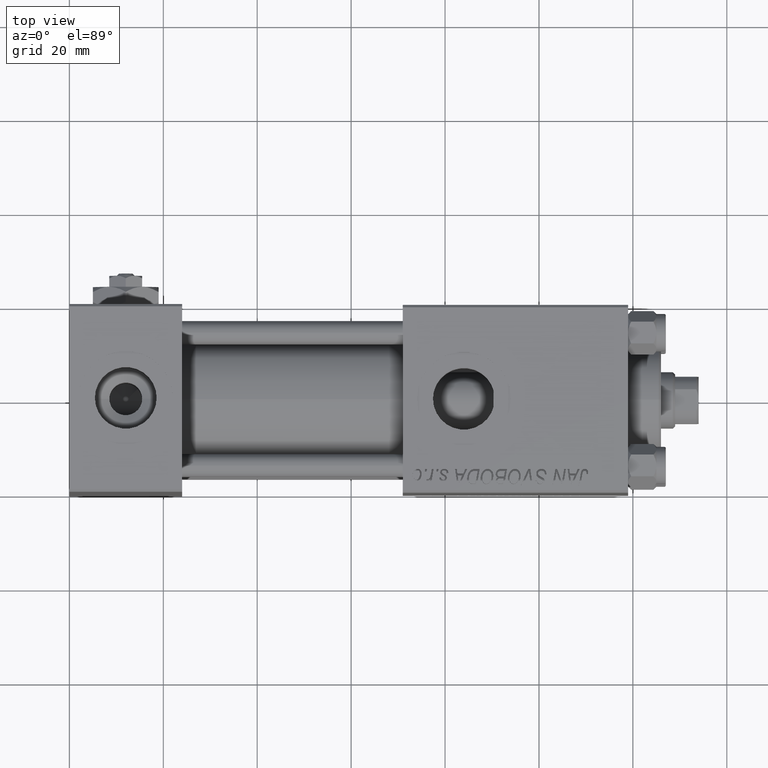
[diagram: clean part render]
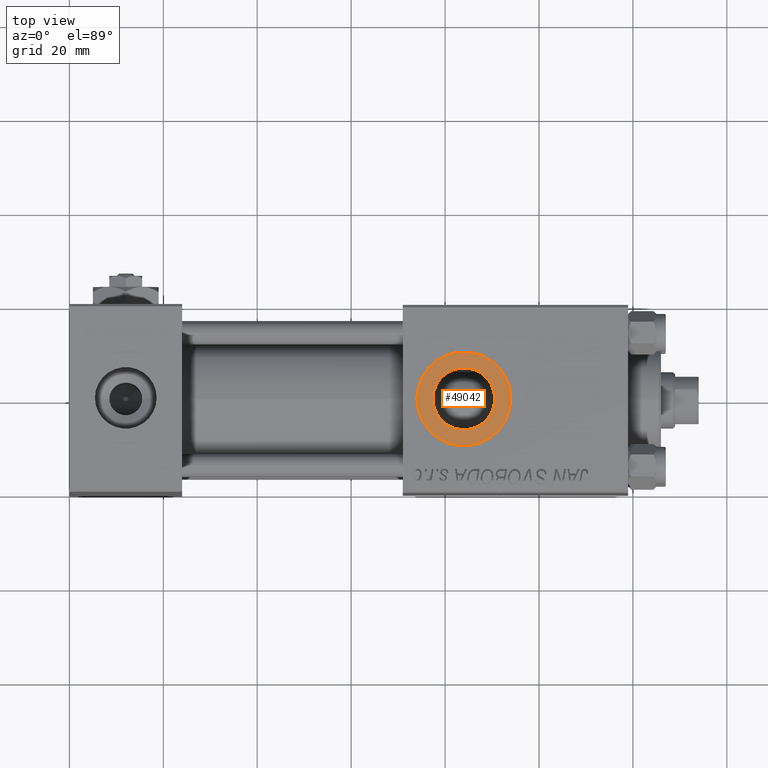
[diagram: same view with one face highlighted and labeled with its STEP entity id]
A machine part, top view. The second image highlights one B-rep face of the part: STEP entity #49042.
In plain terms, the highlighted planar face has unit normal (0, 0, 1).
Its self-contained STEP definition (entity closure, byte-faithful):
#1511 = AXIS2_PLACEMENT_3D ( 'NONE', #29457, #13822, #1573 ) ;
#1573 = DIRECTION ( 'NONE',  ( 1.000000000000000000, 0.000000000000000000, 0.000000000000000000 ) ) ;
#2871 = CIRCLE ( 'NONE', #22034, 6.580000000000002736 ) ;
#5243 = VERTEX_POINT ( 'NONE', #21352 ) ;
#6294 = CIRCLE ( 'NONE', #35447, 10.00000000000000888 ) ;
#7165 = VERTEX_POINT ( 'NONE', #18822 ) ;
#9052 = EDGE_CURVE ( 'NONE', #5243, #7165, #6294, .T. ) ;
#12433 = FACE_BOUND ( 'NONE', #14903, .T. ) ;
#13822 = DIRECTION ( 'NONE',  ( 0.000000000000000000, 0.000000000000000000, 1.000000000000000000 ) ) ;
#14903 = EDGE_LOOP ( 'NONE', ( #19771, #42116 ) ) ;
#15458 = EDGE_CURVE ( 'NONE', #7165, #5243, #16506, .T. ) ;
#16506 = CIRCLE ( 'NONE', #1511, 10.00000000000000888 ) ;
#16733 = AXIS2_PLACEMENT_3D ( 'NONE', #28570, #17085, #28061 ) ;
#16751 = CARTESIAN_POINT ( 'NONE',  ( 84.00000000000162004, -1.734723475976807094E-15, 19.80000000000000071 ) ) ;
#17067 = DIRECTION ( 'NONE',  ( 1.000000000000000000, 0.000000000000000000, 0.000000000000000000 ) ) ;
#17085 = DIRECTION ( 'NONE',  ( 0.000000000000000000, 0.000000000000000000, 1.000000000000000000 ) ) ;
#18206 = CARTESIAN_POINT ( 'NONE',  ( 77.42000000000160753, -9.289058821378484469E-16, 19.80000000000000071 ) ) ;
#18822 = CARTESIAN_POINT ( 'NONE',  ( 94.00000000000162004, -1.734723475976806897E-15, 19.80000000000000071 ) ) ;
#19771 = ORIENTED_EDGE ( 'NONE', *, *, #25733, .F. ) ;
#19926 = AXIS2_PLACEMENT_3D ( 'NONE', #16751, #47849, #44189 ) ;
#20783 = ORIENTED_EDGE ( 'NONE', *, *, #15458, .T. ) ;
#21352 = CARTESIAN_POINT ( 'NONE',  ( 74.00000000000160583, -5.100766768294525560E-16, 19.80000000000000071 ) ) ;
#21494 = CARTESIAN_POINT ( 'NONE',  ( 84.00000000000162004, -1.734723475976807094E-15, 19.80000000000000071 ) ) ;
#21754 = DIRECTION ( 'NONE',  ( 0.000000000000000000, 0.000000000000000000, 1.000000000000000000 ) ) ;
#21836 = EDGE_CURVE ( 'NONE', #41627, #30014, #27397, .T. ) ;
#22034 = AXIS2_PLACEMENT_3D ( 'NONE', #21494, #21754, #17067 ) ;
#22352 = CARTESIAN_POINT ( 'NONE',  ( 90.58000000000161833, -1.734723475976807094E-15, 19.80000000000000071 ) ) ;
#25733 = EDGE_CURVE ( 'NONE', #30014, #41627, #2871, .T. ) ;
#25960 = CARTESIAN_POINT ( 'NONE',  ( 84.00000000000162004, -1.734723475976806897E-15, 19.80000000000000071 ) ) ;
#27397 = CIRCLE ( 'NONE', #19926, 6.580000000000002736 ) ;
#28061 = DIRECTION ( 'NONE',  ( 1.000000000000000000, 0.000000000000000000, -0.000000000000000000 ) ) ;
#28570 = CARTESIAN_POINT ( 'NONE',  ( 84.00000000000162004, -1.734723475976806897E-15, 19.80000000000000071 ) ) ;
#29457 = CARTESIAN_POINT ( 'NONE',  ( 84.00000000000162004, -1.734723475976806897E-15, 19.80000000000000071 ) ) ;
#29875 = DIRECTION ( 'NONE',  ( 0.000000000000000000, 0.000000000000000000, 1.000000000000000000 ) ) ;
#30014 = VERTEX_POINT ( 'NONE', #22352 ) ;
#32253 = FACE_OUTER_BOUND ( 'NONE', #50524, .T. ) ;
#35447 = AXIS2_PLACEMENT_3D ( 'NONE', #25960, #29875, #45835 ) ;
#41627 = VERTEX_POINT ( 'NONE', #18206 ) ;
#42116 = ORIENTED_EDGE ( 'NONE', *, *, #21836, .F. ) ;
#44189 = DIRECTION ( 'NONE',  ( 1.000000000000000000, 0.000000000000000000, 0.000000000000000000 ) ) ;
#45835 = DIRECTION ( 'NONE',  ( 1.000000000000000000, 0.000000000000000000, 0.000000000000000000 ) ) ;
#47849 = DIRECTION ( 'NONE',  ( 0.000000000000000000, 0.000000000000000000, 1.000000000000000000 ) ) ;
#48197 = PLANE ( 'NONE',  #16733 ) ;
#48346 = ORIENTED_EDGE ( 'NONE', *, *, #9052, .T. ) ;
#49042 = ADVANCED_FACE ( 'NONE', ( #12433, #32253 ), #48197, .T. ) ;
#50524 = EDGE_LOOP ( 'NONE', ( #20783, #48346 ) ) ;